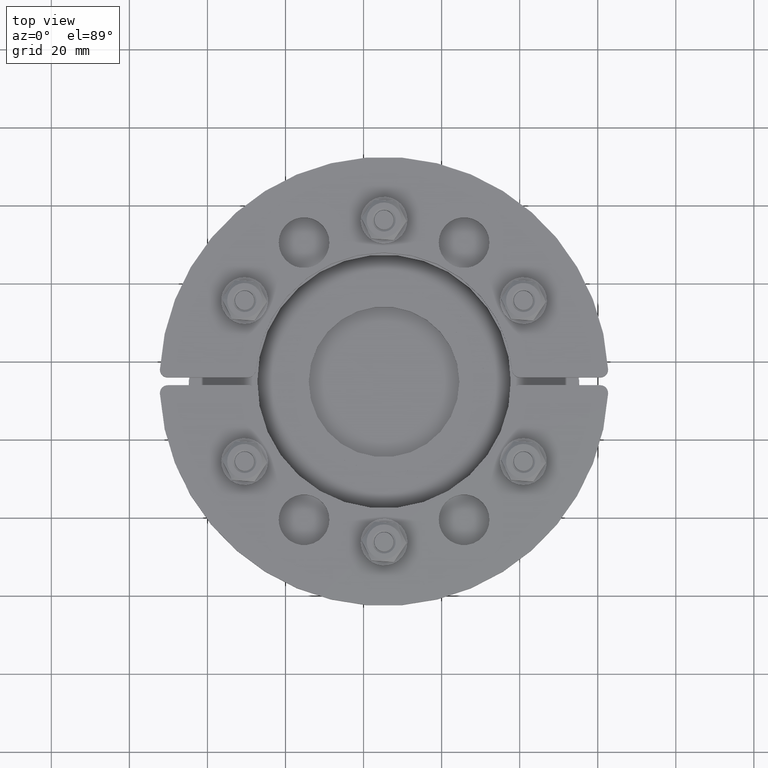
[diagram: clean part render]
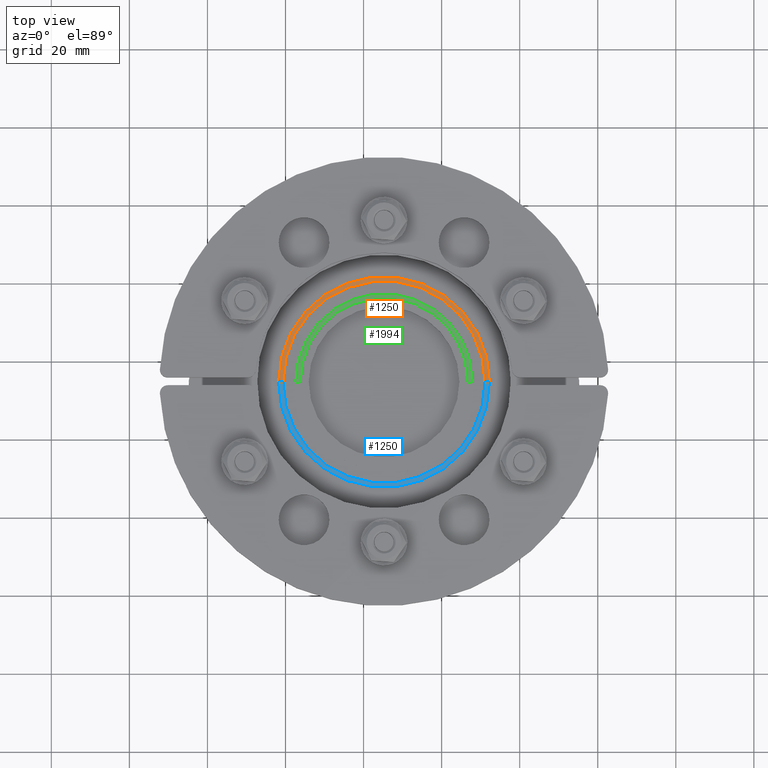
[diagram: same view with three faces highlighted in distinct colors, each labeled with its STEP entity id]
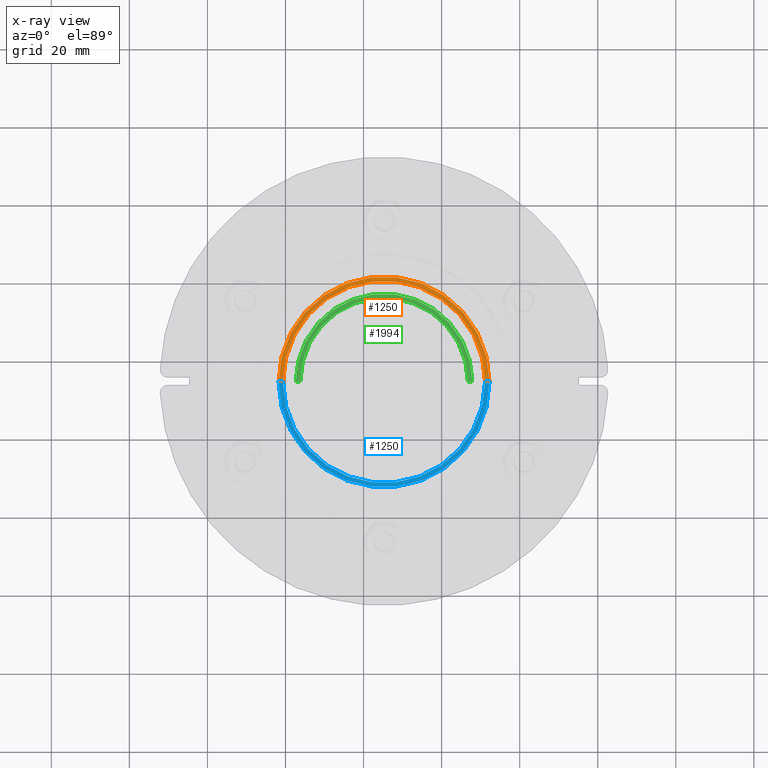
[diagram: x-ray of the same camera — body ghosted, the three highlighted faces saturated]
A machine part, top view with three faces highlighted in distinct colors.
The next image is the same camera in x-ray (body ghosted, the three faces saturated) — at least one of them is partly hidden behind the body in this view.
Their STEP definitions:

[orange] entity #1250 — the highlighted planar face has unit normal (0, -0, -1).
#1104=CARTESIAN_POINT('',(27.0,0.0,0.0));
#1105=VERTEX_POINT('',#1104);
#1106=CARTESIAN_POINT('',(-27.0,0.0,0.0));
#1107=VERTEX_POINT('',#1106);
#1108=CARTESIAN_POINT('',(0.0,0.0,0.0));
#1109=DIRECTION('',(0.0,0.0,1.0));
#1110=DIRECTION('',(1.0,0.0,0.0));
#1111=AXIS2_PLACEMENT_3D('',#1108,#1109,#1110);
#1112=CIRCLE('',#1111,27.0);
#1113=EDGE_CURVE('',#1105,#1107,#1112,.T.);
#1146=CARTESIAN_POINT('',(25.899999999999999,0.0,0.0));
#1147=VERTEX_POINT('',#1146);
#1148=CARTESIAN_POINT('',(25.899999999999999,0.0,0.0));
#1149=DIRECTION('',(1.0,0.0,0.0));
#1150=VECTOR('',#1149,1.100000000000005);
#1151=LINE('',#1148,#1150);
#1152=EDGE_CURVE('',#1147,#1105,#1151,.T.);
#1177=CARTESIAN_POINT('',(-25.899999999999999,0.0,0.0));
#1178=VERTEX_POINT('',#1177);
#1179=CARTESIAN_POINT('',(0.0,0.0,0.0));
#1180=DIRECTION('',(0.0,0.0,-1.0));
#1181=DIRECTION('',(-1.0,0.0,0.0));
#1182=AXIS2_PLACEMENT_3D('',#1179,#1180,#1181);
#1183=CIRCLE('',#1182,25.899999999999999);
#1184=EDGE_CURVE('',#1178,#1147,#1183,.T.);
#1210=CARTESIAN_POINT('',(-27.0,0.0,0.0));
#1211=DIRECTION('',(1.0,0.0,0.0));
#1212=VECTOR('',#1211,1.100000000000001);
#1213=LINE('',#1210,#1212);
#1214=EDGE_CURVE('',#1107,#1178,#1213,.T.);
#1239=CARTESIAN_POINT('',(8.421461E-016,16.553830910955831,0.0));
#1240=DIRECTION('',(0.0,0.0,1.0));
#1241=DIRECTION('',(1.0,0.0,0.0));
#1242=AXIS2_PLACEMENT_3D('',#1239,#1240,#1241);
#1243=PLANE('',#1242);
#1244=ORIENTED_EDGE('',*,*,#1214,.F.);
#1245=ORIENTED_EDGE('',*,*,#1113,.F.);
#1246=ORIENTED_EDGE('',*,*,#1152,.F.);
#1247=ORIENTED_EDGE('',*,*,#1184,.F.);
#1248=EDGE_LOOP('',(#1244,#1245,#1246,#1247));
#1249=FACE_OUTER_BOUND('',#1248,.T.);
#1250=ADVANCED_FACE('',(#1249),#1243,.F.);

[blue] entity #1250 — the highlighted planar face has unit normal (0, -0, -1).
#1104=CARTESIAN_POINT('',(27.0,0.0,0.0));
#1105=VERTEX_POINT('',#1104);
#1106=CARTESIAN_POINT('',(-27.0,0.0,0.0));
#1107=VERTEX_POINT('',#1106);
#1108=CARTESIAN_POINT('',(0.0,0.0,0.0));
#1109=DIRECTION('',(0.0,0.0,1.0));
#1110=DIRECTION('',(1.0,0.0,0.0));
#1111=AXIS2_PLACEMENT_3D('',#1108,#1109,#1110);
#1112=CIRCLE('',#1111,27.0);
#1113=EDGE_CURVE('',#1105,#1107,#1112,.T.);
#1146=CARTESIAN_POINT('',(25.899999999999999,0.0,0.0));
#1147=VERTEX_POINT('',#1146);
#1148=CARTESIAN_POINT('',(25.899999999999999,0.0,0.0));
#1149=DIRECTION('',(1.0,0.0,0.0));
#1150=VECTOR('',#1149,1.100000000000005);
#1151=LINE('',#1148,#1150);
#1152=EDGE_CURVE('',#1147,#1105,#1151,.T.);
#1177=CARTESIAN_POINT('',(-25.899999999999999,0.0,0.0));
#1178=VERTEX_POINT('',#1177);
#1179=CARTESIAN_POINT('',(0.0,0.0,0.0));
#1180=DIRECTION('',(0.0,0.0,-1.0));
#1181=DIRECTION('',(-1.0,0.0,0.0));
#1182=AXIS2_PLACEMENT_3D('',#1179,#1180,#1181);
#1183=CIRCLE('',#1182,25.899999999999999);
#1184=EDGE_CURVE('',#1178,#1147,#1183,.T.);
#1210=CARTESIAN_POINT('',(-27.0,0.0,0.0));
#1211=DIRECTION('',(1.0,0.0,0.0));
#1212=VECTOR('',#1211,1.100000000000001);
#1213=LINE('',#1210,#1212);
#1214=EDGE_CURVE('',#1107,#1178,#1213,.T.);
#1239=CARTESIAN_POINT('',(8.421461E-016,16.553830910955831,0.0));
#1240=DIRECTION('',(0.0,0.0,1.0));
#1241=DIRECTION('',(1.0,0.0,0.0));
#1242=AXIS2_PLACEMENT_3D('',#1239,#1240,#1241);
#1243=PLANE('',#1242);
#1244=ORIENTED_EDGE('',*,*,#1214,.F.);
#1245=ORIENTED_EDGE('',*,*,#1113,.F.);
#1246=ORIENTED_EDGE('',*,*,#1152,.F.);
#1247=ORIENTED_EDGE('',*,*,#1184,.F.);
#1248=EDGE_LOOP('',(#1244,#1245,#1246,#1247));
#1249=FACE_OUTER_BOUND('',#1248,.T.);
#1250=ADVANCED_FACE('',(#1249),#1243,.F.);

[green] entity #1994 — the highlighted planar face has unit normal (0, -0, -1).
#1848=CARTESIAN_POINT('',(22.599999999999998,0.0,0.0));
#1849=VERTEX_POINT('',#1848);
#1850=CARTESIAN_POINT('',(-22.599999999999998,0.0,0.0));
#1851=VERTEX_POINT('',#1850);
#1852=CARTESIAN_POINT('',(0.0,0.0,0.0));
#1853=DIRECTION('',(0.0,0.0,1.0));
#1854=DIRECTION('',(1.0,0.0,0.0));
#1855=AXIS2_PLACEMENT_3D('',#1852,#1853,#1854);
#1856=CIRCLE('',#1855,22.599999999999998);
#1857=EDGE_CURVE('',#1849,#1851,#1856,.T.);
#1890=CARTESIAN_POINT('',(21.5,0.0,0.0));
#1891=VERTEX_POINT('',#1890);
#1892=CARTESIAN_POINT('',(21.5,0.0,0.0));
#1893=DIRECTION('',(1.0,0.0,0.0));
#1894=VECTOR('',#1893,1.099999999999998);
#1895=LINE('',#1892,#1894);
#1896=EDGE_CURVE('',#1891,#1849,#1895,.T.);
#1921=CARTESIAN_POINT('',(-21.5,0.0,0.0));
#1922=VERTEX_POINT('',#1921);
#1923=CARTESIAN_POINT('',(0.0,0.0,0.0));
#1924=DIRECTION('',(0.0,0.0,-1.0));
#1925=DIRECTION('',(-1.0,0.0,0.0));
#1926=AXIS2_PLACEMENT_3D('',#1923,#1924,#1925);
#1927=CIRCLE('',#1926,21.5);
#1928=EDGE_CURVE('',#1922,#1891,#1927,.T.);
#1954=CARTESIAN_POINT('',(-22.600000000000001,0.0,0.0));
#1955=DIRECTION('',(1.0,0.0,0.0));
#1956=VECTOR('',#1955,1.100000000000001);
#1957=LINE('',#1954,#1956);
#1958=EDGE_CURVE('',#1851,#1922,#1957,.T.);
#1983=CARTESIAN_POINT('',(5.068375E-016,13.755086068448728,0.0));
#1984=DIRECTION('',(0.0,0.0,1.0));
#1985=DIRECTION('',(1.0,0.0,0.0));
#1986=AXIS2_PLACEMENT_3D('',#1983,#1984,#1985);
#1987=PLANE('',#1986);
#1988=ORIENTED_EDGE('',*,*,#1958,.F.);
#1989=ORIENTED_EDGE('',*,*,#1857,.F.);
#1990=ORIENTED_EDGE('',*,*,#1896,.F.);
#1991=ORIENTED_EDGE('',*,*,#1928,.F.);
#1992=EDGE_LOOP('',(#1988,#1989,#1990,#1991));
#1993=FACE_OUTER_BOUND('',#1992,.T.);
#1994=ADVANCED_FACE('',(#1993),#1987,.F.);